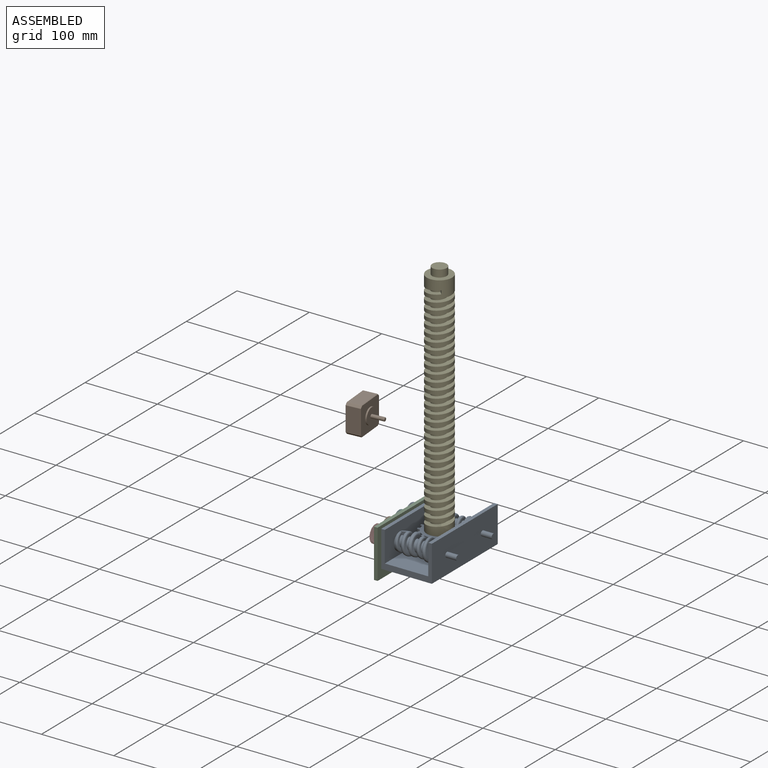
[diagram: assembled view]
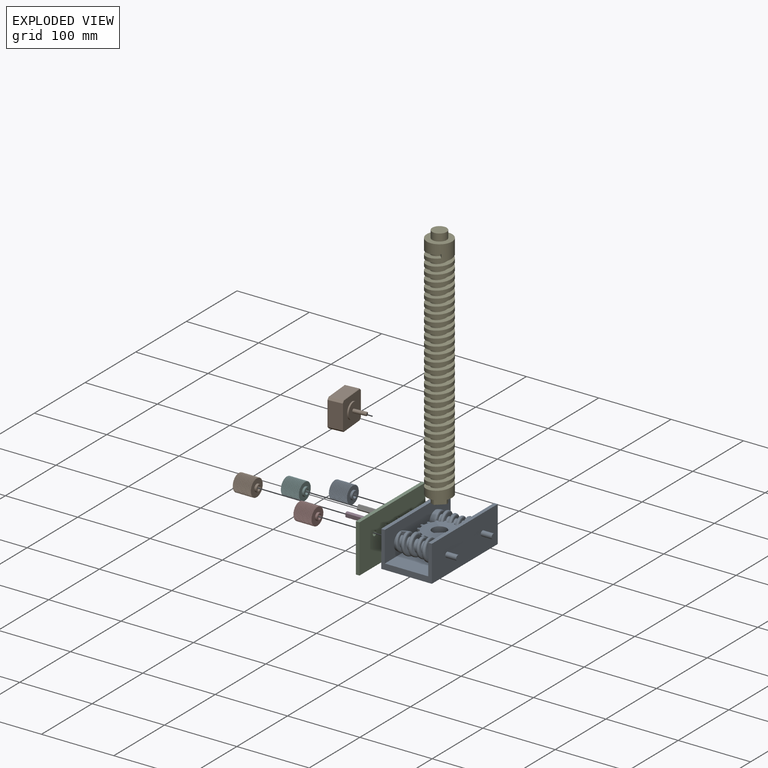
[diagram: exploded view]
GUIDED TOUR — MATED ASSEMBLY WITH SUBASSEMBLIES (Onshape document a461b10b5617b8be7ff6b4a0, AutoMate assembly a461b10b5617b8be7ff6b4a0_db991699ef675610364aaf17_997f8f6fb79155bb692a388e_default)

This assembly has 13 component occurrences arranged in 10 top-level units: 9 individual components plus 1 subassembly (S0). The tour has two levels: first the top level, where each subassembly is treated as one rigid unit; then each subassembly is toured internally in its own section (nesting deeper than one subassembly level is flattened into its subassembly's section).

Components are labeled P0..P12 across the whole record; subassembly units are labeled S0..S0. A mate is a constraint between two units; its type names the relative motion it leaves free:
  FASTENED — locks the two components together rigidly (no relative motion),
  REVOLUTE — leaves rotation about the listed axis free (a hinge).
Axis/direction vectors are unit vectors and 'through' points are millimeter coordinates, both in the assembly's world frame.

TOP-LEVEL MATES (between units; each subassembly's internal mates are listed in its own section)
  1. FASTENED "Fastened 2": P2 <-> S0, direction (1.000, 0.000, 0.000) through (-40.00, -35.00, 25.00) mm
  2. FASTENED "Fastened 5": P6 <-> P7, direction (-1.000, 0.000, 0.000) through (-67.00, 11.67, 25.00) mm
  3. REVOLUTE "Revolute 2": P3 <-> S0, axis (1.000, 0.000, 0.000) through (-35.00, -11.67, 25.00) mm
  4. FASTENED "Fastened 4": P11 <-> S0, direction (1.000, 0.000, 0.000) through (-36.00, 35.00, 25.00) mm
  5. FASTENED "Fastened 6": P12 <-> P3, direction (-1.000, 0.000, 0.000) through (-67.00, -11.67, 25.00) mm
  6. REVOLUTE "Revolute 1": P7 <-> S0, axis (1.000, 0.000, 0.000) through (-35.00, 11.67, 25.00) mm
  7. FASTENED "Fastened 3": S0 <-> P2, direction (-1.000, 0.000, 0.000) through (-40.00, 35.00, 25.00) mm
  8. FASTENED "Fastened 1": P4 <-> S0, direction (0.000, 0.000, -1.000) through (0.00, 0.00, 23.00) mm
  9. FASTENED "Fastened 7": S0 <-> P9, direction (-1.000, 0.000, 0.000) through (-40.00, -35.00, 25.00) mm

TOP-LEVEL ASSEMBLY ORDER
  1. P2 — the base component [order heuristic]
  2. P3 — core [order heuristic]
  3. P7 — core [order heuristic]
  4. P12 — core [order heuristic]
  5. P6 [order verified]
  6. S0 [order verified]
  7. P11 [order verified]
  8. P9 [order verified]
  9. P4 [order verified]
  10. P1 [order verified]
Order-tag legend:
  [order verified] — this step's position reverses a verified removal order: the component was checked to insert without passing through the ones already placed.
  [order heuristic] — the first 4 components form the assembly's core: parts whose collision-free extraction could not be verified, listed in mate-graph order.

Of the 13 component occurrences, 4 carry the full construction recipe — the FeatureScript program that regenerates the part's solid from scratch; the rest are supplied as boundary geometry only. Each toured unit is shown spotlighted twice — assembled, then exploded with a leader line back to its socket (green = recipe-attached component, orange = geometry-only, blue = subassembly unit; the rest desaturated gray).
NOTE — document 2 of 2 of this assembly tour. The two overview renders and the header above are repeated from document 1; the component sections below continue where the previous document stopped.
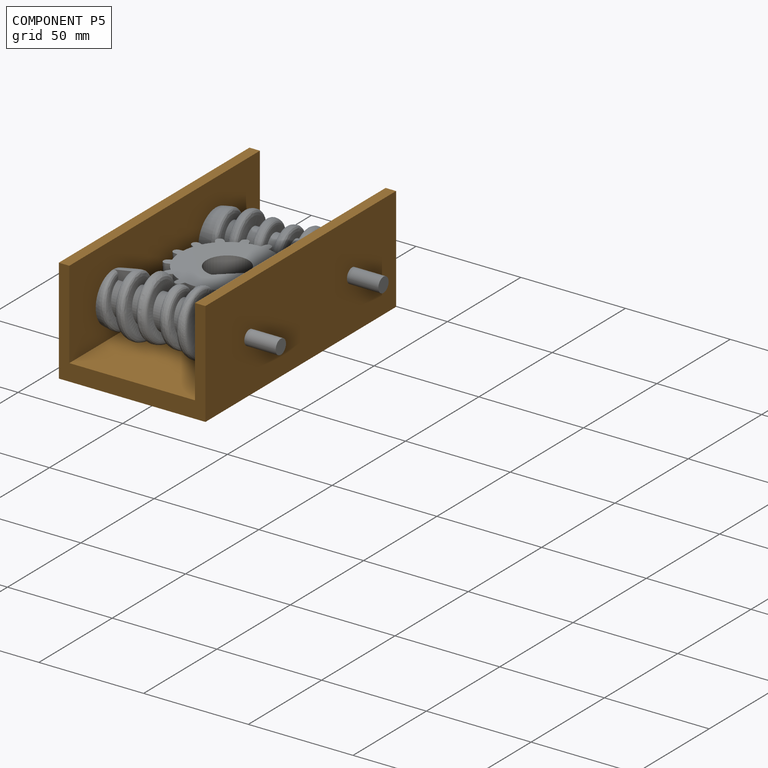
[diagram: component P5 — assembled]
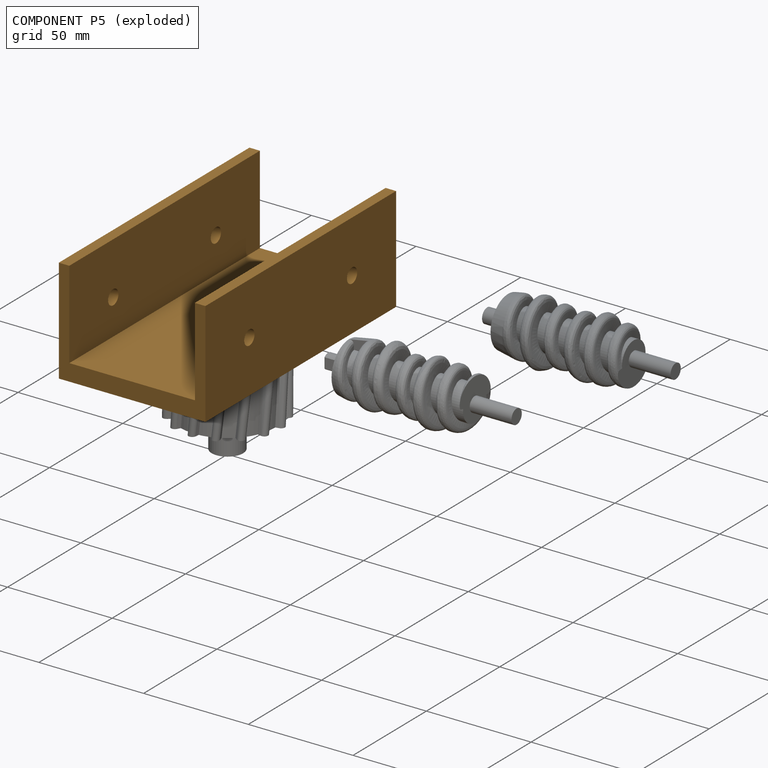
[diagram: component P5 — exploded]
COMPONENT P5 — geometry summary (no construction recipe available for this part):
  bounding box: 130.0 x 71.0 x 50.0 mm
  B-rep topology: 1 solid, 27 faces, 122 edges
  volume: 126768 mm^3 (27% of its bounding box)
  symmetry: mirror-symmetric across its y mid-plane
Held by: REVOLUTE mate "Revolute 1" to P0; REVOLUTE mate "Revolute 2" to P8; REVOLUTE mate "Revolute 3" to P10; REVOLUTE mate "Revolute 1" to P0; REVOLUTE mate "Revolute 3" to P10; REVOLUTE mate "Revolute 2" to P8.
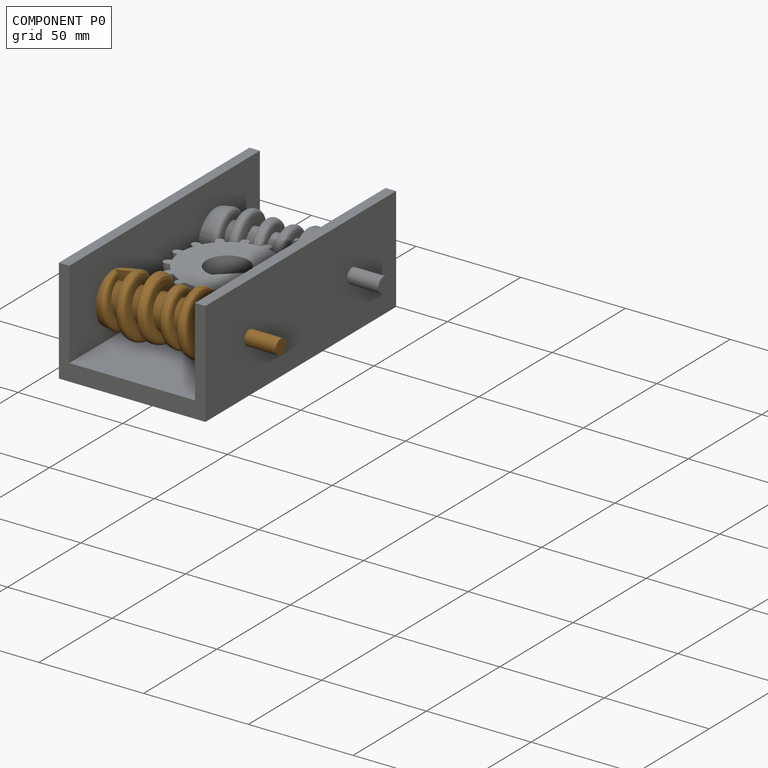
[diagram: component P0 — assembled]
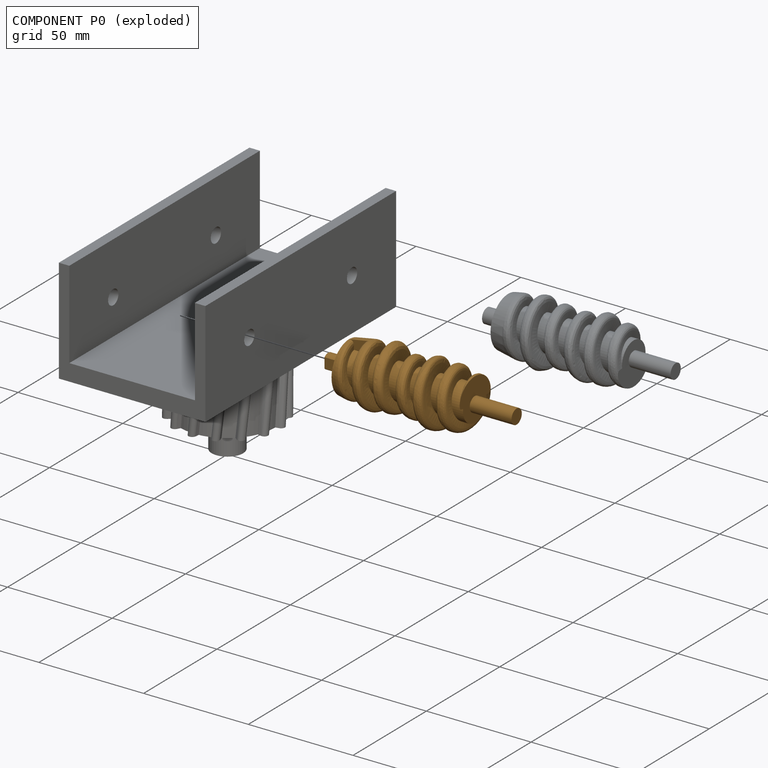
[diagram: component P0 — exploded]
COMPONENT P0 — geometry summary (no construction recipe available for this part):
  bounding box: 90.2 x 41.3 x 41.3 mm
  B-rep topology: 1 solid, 21 faces, 102 edges
  volume: 24713 mm^3 (16% of its bounding box)
Held by: REVOLUTE mate "Revolute 1" to P5; REVOLUTE mate "Revolute 1" to P5.
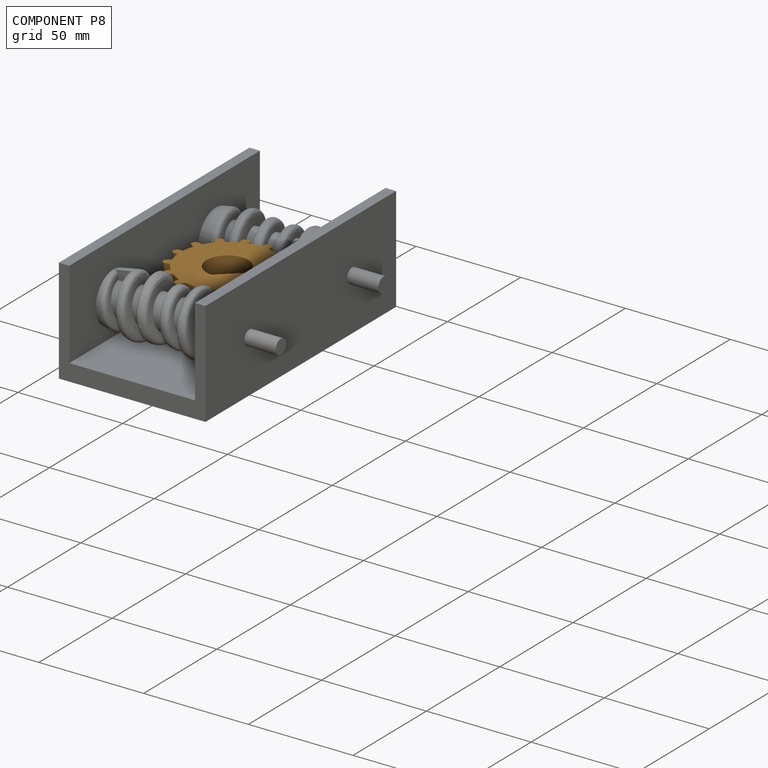
[diagram: component P8 — assembled]
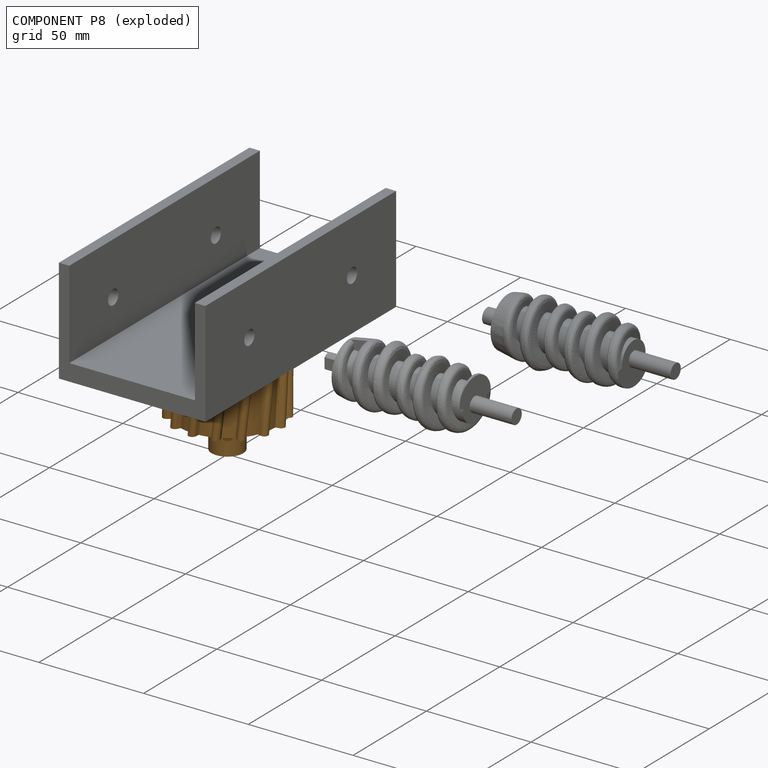
[diagram: component P8 — exploded]
COMPONENT P8 — geometry summary (no construction recipe available for this part):
  bounding box: 54.8 x 54.5 x 52.9 mm
  B-rep topology: 1 solid, 82 faces, 470 edges
  volume: 42223 mm^3 (27% of its bounding box)
Held by: REVOLUTE mate "Revolute 2" to P5; REVOLUTE mate "Revolute 2" to P5.
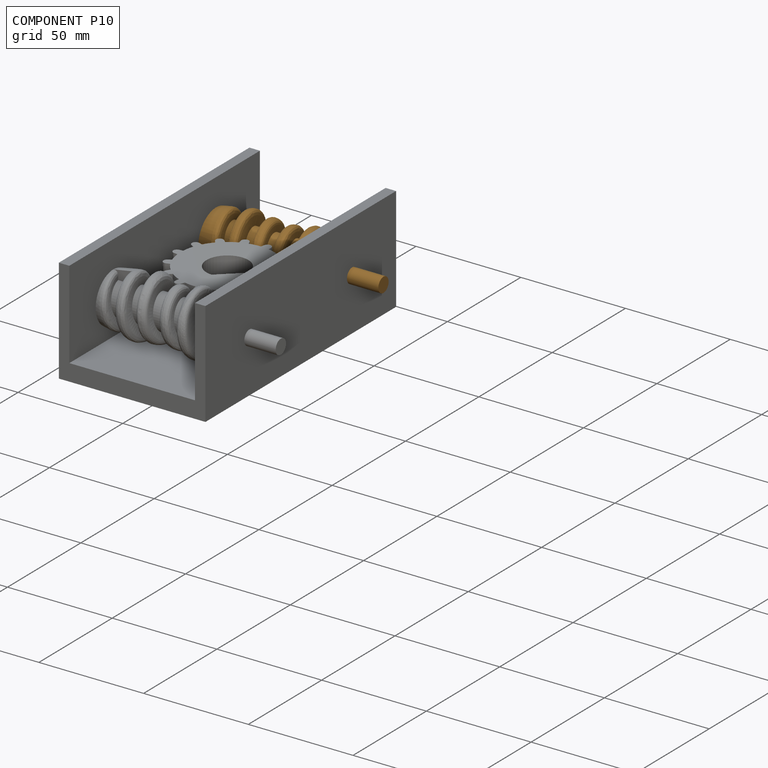
[diagram: component P10 — assembled]
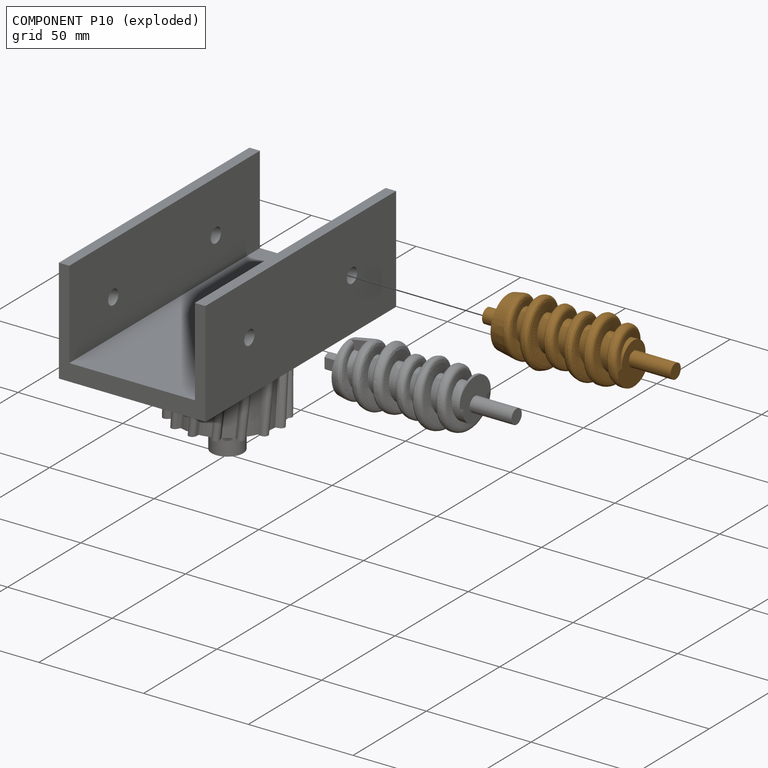
[diagram: component P10 — exploded]
COMPONENT P10 — geometry summary (no construction recipe available for this part):
  bounding box: 90.2 x 41.3 x 41.3 mm
  B-rep topology: 1 solid, 21 faces, 102 edges
  volume: 24713 mm^3 (16% of its bounding box)
Held by: REVOLUTE mate "Revolute 3" to P5; REVOLUTE mate "Revolute 3" to P5.
PROVENANCE & LICENSES
Assembly (occurrences, transforms, mates, per-part STEP geometry): AutoMate dataset, Zenodo record 7776208, CC0.
Construction recipes: CADFS (HuggingFace VladPyatov/CADFS, CC-BY-4.0, layered over the ABC dataset), FeatureScript reconstruction programs keyed by ABC model id.
Join: ABC meta listings map ABC model id -> Onshape documentId; within a shared document, parts are matched by geometric signature (bounding-box dims + volume at 0.1% relative tolerance, exact B-rep face/solid counts).
Verification: 4 of this assembly's 13 components carry a recipe attachment, and every attachment is mesh-verified: the CADFS STEP and the AutoMate member STEP were compared as meshes in their shared local frame (symmetric sampled-point-to-mesh distance); worst across the 4 attachments: below the mesh-comparison resolution (tessellation chordal tolerance ~0.219 mm) on a 146 mm part.
Renders: orthographic iso camera (az 35 / el 25); the floor grid conveys scale (grid pitch printed in each image; no ruler). In the exploded view each component is displaced by its stored offset vector: the offsets alone carry the explosion direction (mate normal/axis signs are not orientation cues and do not encode it), and separation distances are assigned per mate-chain, not proportionally to assembly-order depth.
